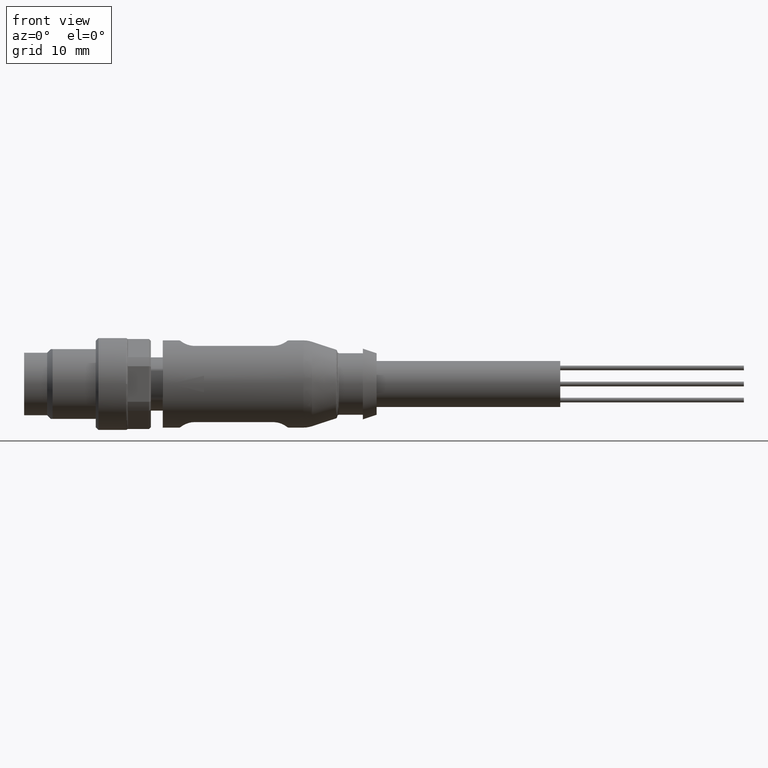
[diagram: clean part render]
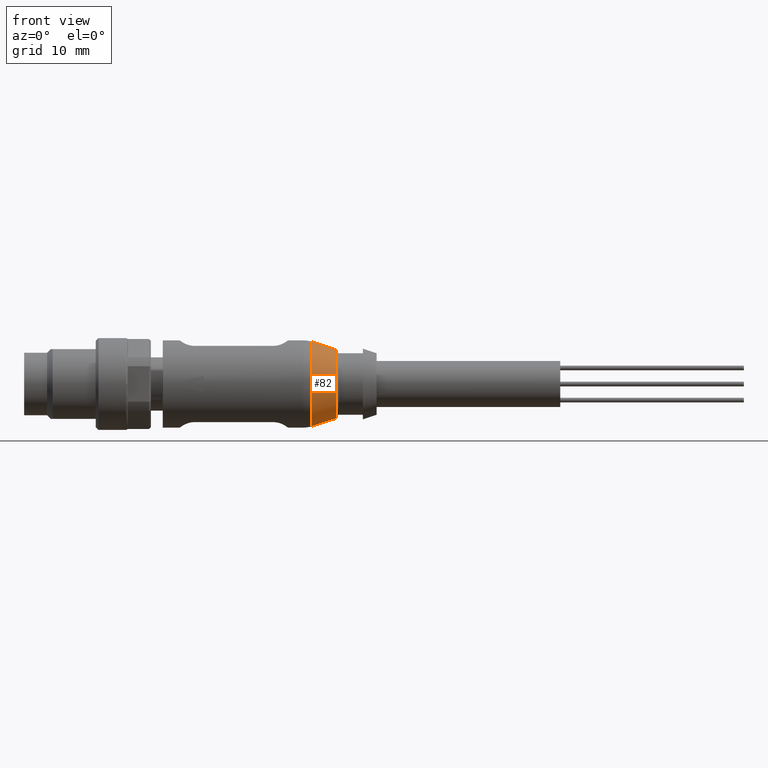
[diagram: same view with one face highlighted and labeled with its STEP entity id]
A machine part, front view. The second image highlights one B-rep face of the part: STEP entity #82.
In plain terms, the highlighted conical surface has half-angle 18.166 deg.
Its self-contained STEP definition (entity closure, byte-faithful):
#82 = ADVANCED_FACE ( 'NONE', ( #424 ), #332, .T. ) ;
#205 = VERTEX_POINT ( 'NONE', #3810 ) ;
#332 = CONICAL_SURFACE ( 'NONE', #2712, 4.600472391729227600, 0.3170557528550813100 ) ;
#359 = CIRCLE ( 'NONE', #3770, 3.745165066845857800 ) ;
#424 = FACE_OUTER_BOUND ( 'NONE', #1181, .T. ) ;
#425 = CARTESIAN_POINT ( 'NONE',  ( 4.605703185688980700, 8.673617379884035500E-016, 0.0000000000000000000 ) ) ;
#1181 = EDGE_LOOP ( 'NONE', ( #2124, #3057, #2975, #2919 ) ) ;
#1247 = EDGE_CURVE ( 'NONE', #3141, #3330, #2102, .T. ) ;
#1413 = VECTOR ( 'NONE', #3002, 1000.000000000000200 ) ;
#1430 = CIRCLE ( 'NONE', #2964, 4.600472392204008700 ) ;
#1563 = CARTESIAN_POINT ( 'NONE',  ( 7.212354083776517700, 1.378384648013441400E-015, -3.745165066845858300 ) ) ;
#1601 = CARTESIAN_POINT ( 'NONE',  ( 4.605703185663991800, 1.897006575976806900E-015, -1.519831689942020800E-016 ) ) ;
#1674 = CARTESIAN_POINT ( 'NONE',  ( 4.605703185688980700, 1.430757116898100200E-015, -4.600472391729227600 ) ) ;
#1683 = CARTESIAN_POINT ( 'NONE',  ( 4.605703185688980700, 8.673617379884035500E-016, 4.600472391729227600 ) ) ;
#1907 = CARTESIAN_POINT ( 'NONE',  ( 7.212354083776517700, 8.879616000000001400E-016, 0.0000000000000000000 ) ) ;
#1945 = DIRECTION ( 'NONE',  ( 0.0000000000000000000, 0.0000000000000000000, 1.000000000000000000 ) ) ;
#2102 = LINE ( 'NONE', #1683, #2983 ) ;
#2119 = DIRECTION ( 'NONE',  ( -1.000000000000000000, 0.0000000000000000000, 0.0000000000000000000 ) ) ;
#2124 = ORIENTED_EDGE ( 'NONE', *, *, #2658, .F. ) ;
#2241 = DIRECTION ( 'NONE',  ( 0.0000000000000000000, -1.000000000000000000, 0.0000000000000000000 ) ) ;
#2382 = EDGE_CURVE ( 'NONE', #2385, #3141, #359, .T. ) ;
#2385 = VERTEX_POINT ( 'NONE', #1563 ) ;
#2463 = CARTESIAN_POINT ( 'NONE',  ( 7.212354083776517700, 8.673617379883229800E-016, 3.745165066845858300 ) ) ;
#2658 = EDGE_CURVE ( 'NONE', #2385, #205, #4066, .T. ) ;
#2712 = AXIS2_PLACEMENT_3D ( 'NONE', #425, #2119, #3428 ) ;
#2919 = ORIENTED_EDGE ( 'NONE', *, *, #4166, .F. ) ;
#2964 = AXIS2_PLACEMENT_3D ( 'NONE', #1601, #3927, #1945 ) ;
#2975 = ORIENTED_EDGE ( 'NONE', *, *, #1247, .T. ) ;
#2983 = VECTOR ( 'NONE', #3673, 1000.000000000000200 ) ;
#3002 = DIRECTION ( 'NONE',  ( -0.9501574641783883100, 3.818086439347834300E-017, -0.3117704175608946300 ) ) ;
#3057 = ORIENTED_EDGE ( 'NONE', *, *, #2382, .T. ) ;
#3141 = VERTEX_POINT ( 'NONE', #2463 ) ;
#3330 = VERTEX_POINT ( 'NONE', #3392 ) ;
#3392 = CARTESIAN_POINT ( 'NONE',  ( 4.605703185663991800, 8.673617379884035500E-016, 4.600472391737426400 ) ) ;
#3428 = DIRECTION ( 'NONE',  ( 0.0000000000000000000, 0.0000000000000000000, 1.000000000000000000 ) ) ;
#3673 = DIRECTION ( 'NONE',  ( -0.9501574641783883100, 0.0000000000000000000, 0.3117704175608946300 ) ) ;
#3770 = AXIS2_PLACEMENT_3D ( 'NONE', #1907, #4231, #2241 ) ;
#3810 = CARTESIAN_POINT ( 'NONE',  ( 4.605703185663991800, 1.430757116899104500E-015, -4.600472391737426400 ) ) ;
#3927 = DIRECTION ( 'NONE',  ( -1.000000000000000000, 0.0000000000000000000, 0.0000000000000000000 ) ) ;
#4066 = LINE ( 'NONE', #1674, #1413 ) ;
#4166 = EDGE_CURVE ( 'NONE', #205, #3330, #1430, .T. ) ;
#4231 = DIRECTION ( 'NONE',  ( -1.000000000000000000, 0.0000000000000000000, 0.0000000000000000000 ) ) ;